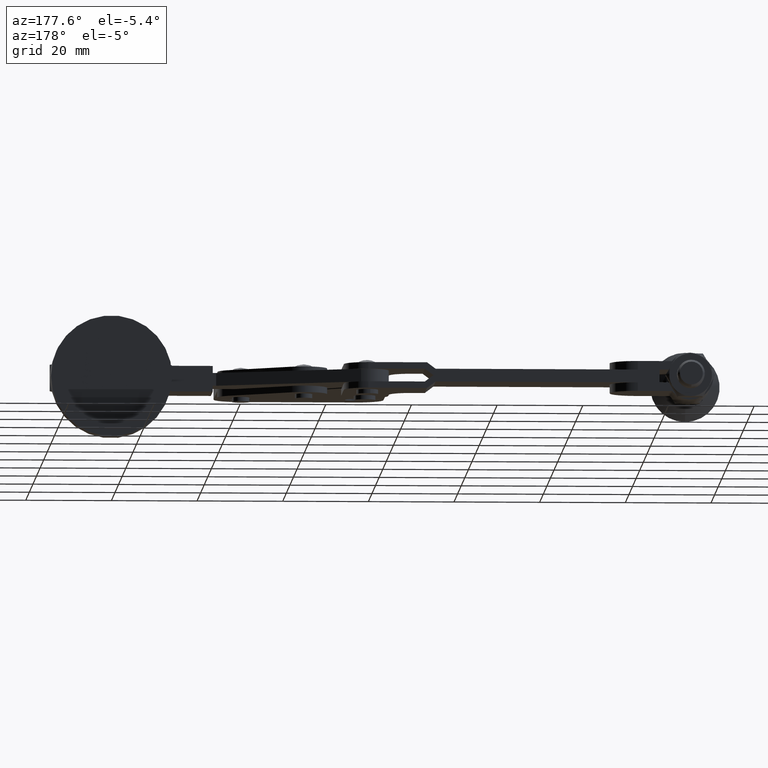
[diagram: clean part render]
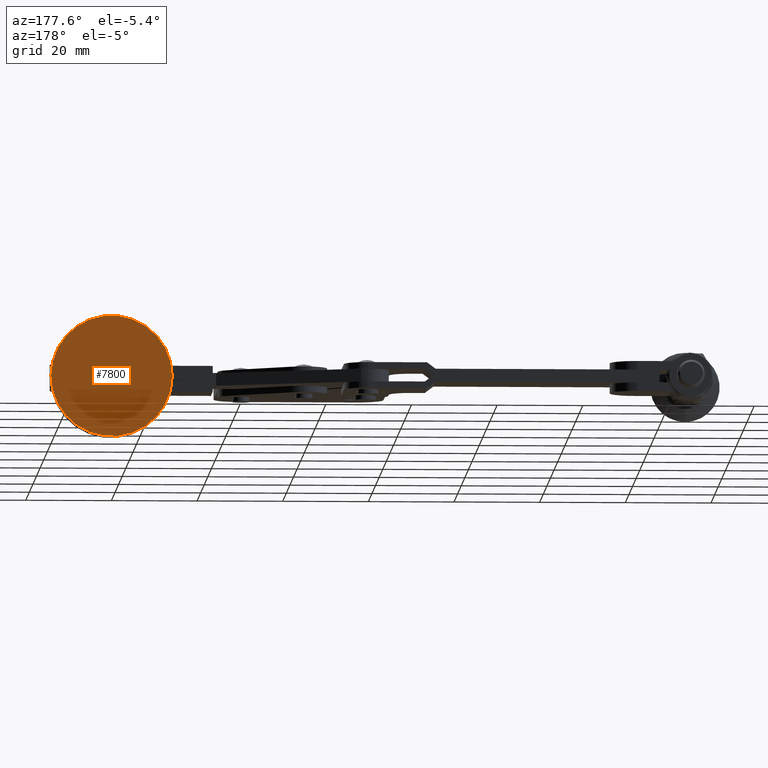
[diagram: same view with one face highlighted and labeled with its STEP entity id]
A machine part, auxiliary view. The second image highlights one B-rep face of the part: STEP entity #7800.
In plain terms, the highlighted planar face has unit normal (-0.0008, 1, 0).
Its self-contained STEP definition (entity closure, byte-faithful):
#693 = CARTESIAN_POINT ( 'NONE',  ( 11.38169471949809100, 32.70000000000001000, 2.776157412436530100E-014 ) ) ;
#1511 = CARTESIAN_POINT ( 'NONE',  ( 25.54169471949822800, 32.70000000000001000, 2.776157412436530100E-014 ) ) ;
#2019 = DIRECTION ( 'NONE',  ( -1.665334536937733300E-016, 1.000000000000000000, -2.953327212804751700E-022 ) ) ;
#2091 = CIRCLE ( 'NONE', #2492, 14.16000000000013700 ) ;
#2455 = EDGE_CURVE ( 'NONE', #7119, #7260, #2091, .T. ) ;
#2492 = AXIS2_PLACEMENT_3D ( 'NONE', #8236, #2019, #4544 ) ;
#2556 = FACE_OUTER_BOUND ( 'NONE', #5030, .T. ) ;
#2754 = EDGE_CURVE ( 'NONE', #7260, #7119, #6764, .T. ) ;
#2789 = DIRECTION ( 'NONE',  ( -1.665334536937733300E-016, 1.000000000000000000, -2.953327212804751700E-022 ) ) ;
#3366 = DIRECTION ( 'NONE',  ( -1.000000000000000000, 0.0000000000000000000, 0.0000000000000000000 ) ) ;
#4104 = PLANE ( 'NONE',  #5690 ) ;
#4108 = AXIS2_PLACEMENT_3D ( 'NONE', #5412, #4155, #3366 ) ;
#4155 = DIRECTION ( 'NONE',  ( -1.665334536937733300E-016, 1.000000000000000000, -2.953327212804751700E-022 ) ) ;
#4544 = DIRECTION ( 'NONE',  ( -1.000000000000000000, 0.0000000000000000000, 0.0000000000000000000 ) ) ;
#5030 = EDGE_LOOP ( 'NONE', ( #7324, #7938 ) ) ;
#5412 = CARTESIAN_POINT ( 'NONE',  ( 25.54169471949822800, 32.70000000000001000, 2.776157412436530100E-014 ) ) ;
#5690 = AXIS2_PLACEMENT_3D ( 'NONE', #1511, #2789, #7360 ) ;
#6764 = CIRCLE ( 'NONE', #4108, 14.16000000000013700 ) ;
#7119 = VERTEX_POINT ( 'NONE', #693 ) ;
#7260 = VERTEX_POINT ( 'NONE', #7316 ) ;
#7316 = CARTESIAN_POINT ( 'NONE',  ( 39.70169471949836300, 32.70000000000001000, 2.949567465645658800E-014 ) ) ;
#7324 = ORIENTED_EDGE ( 'NONE', *, *, #2455, .T. ) ;
#7360 = DIRECTION ( 'NONE',  ( -1.000000000000000000, -1.665334536937733300E-016, 0.0000000000000000000 ) ) ;
#7800 = ADVANCED_FACE ( 'NONE', ( #2556 ), #4104, .T. ) ;
#7938 = ORIENTED_EDGE ( 'NONE', *, *, #2754, .T. ) ;
#8236 = CARTESIAN_POINT ( 'NONE',  ( 25.54169471949822800, 32.70000000000001000, 2.776157412436530100E-014 ) ) ;